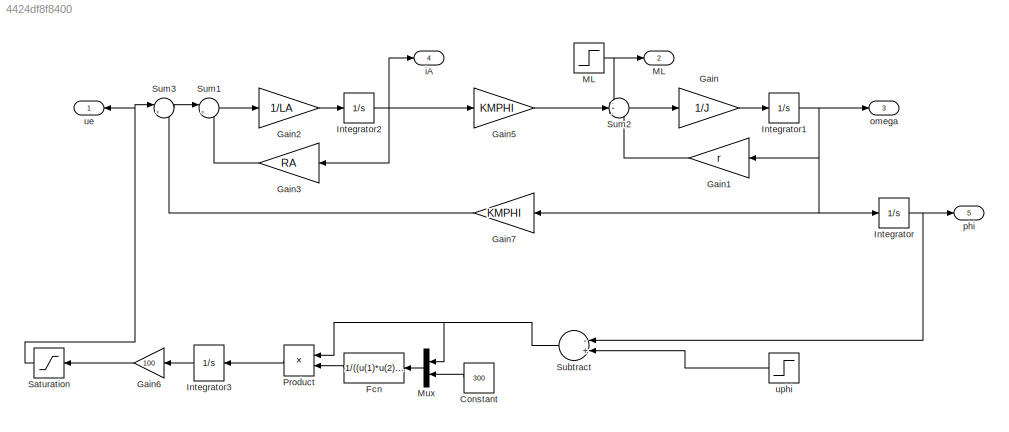
MODEL slx_4424df8f8400
KIND model
BLOCK [Constant] Constant
  Value = 300
BLOCK [Fcn] Fcn
  Expr = 1/((u(1)*u(2))^2+1)
BLOCK [Gain] Gain
  Gain = 1/J
  OutDataTypeStr = Inherit: Inherit via internal rule
  ParamDataTypeStr = Inherit: Inherit via internal rule
  SaturateOnIntegerOverflow = off
BLOCK [Gain] Gain1
  Gain = r
  OutDataTypeStr = Inherit: Inherit via internal rule
  ParamDataTypeStr = Inherit: Inherit via internal rule
  SaturateOnIntegerOverflow = off
BLOCK [Gain] Gain2
  Gain = 1/LA
  OutDataTypeStr = Inherit: Inherit via internal rule
  ParamDataTypeStr = Inherit: Inherit via internal rule
  SaturateOnIntegerOverflow = off
BLOCK [Gain] Gain3
  Gain = RA
  OutDataTypeStr = Inherit: Inherit via internal rule
  ParamDataTypeStr = Inherit: Inherit via internal rule
  SaturateOnIntegerOverflow = off
BLOCK [Gain] Gain5
  Gain = KMPHI
  OutDataTypeStr = Inherit: Inherit via internal rule
  ParamDataTypeStr = Inherit: Inherit via internal rule
  SaturateOnIntegerOverflow = off
BLOCK [Gain] Gain6
  Gain = 100
  OutDataTypeStr = Inherit: Inherit via internal rule
  ParamDataTypeStr = Inherit: Inherit via internal rule
  SaturateOnIntegerOverflow = off
BLOCK [Gain] Gain7
  Gain = KMPHI
  OutDataTypeStr = Inherit: Inherit via internal rule
  ParamDataTypeStr = Inherit: Inherit via internal rule
  SaturateOnIntegerOverflow = off
BLOCK [Integrator] Integrator
  Ports = [1, 1]
BLOCK [Integrator] Integrator1
  Ports = [1, 1]
BLOCK [Integrator] Integrator2
  Ports = [1, 1]
BLOCK [Integrator] Integrator3
  LowerSaturationLimit = -24
  Ports = [1, 1]
  UpperSaturationLimit = 24
BLOCK [Step] ML
  After = Mspiegel
  SampleTime = 0
  Time = 0
BLOCK [Outport] ML 
  IconDisplay = Port number
  Port = 2
BLOCK [Mux] Mux
  DisplayOption = bar
  Inputs = 2
  Ports = [2, 1]
BLOCK [Product] Product
  OutDataTypeStr = Inherit: Inherit via internal rule
  Ports = [2, 1]
  SaturateOnIntegerOverflow = off
BLOCK [Saturate] Saturation
  InputPortMap = u0
  Ports = [1, 1]
BLOCK [Sum] Subtract
  InputSameDT = off
  Inputs = -+
  OutDataTypeStr = Inherit: Inherit via internal rule
  Ports = [2, 1]
  SaturateOnIntegerOverflow = off
BLOCK [Sum] Sum1
  IconShape = round
  InputSameDT = off
  Inputs = |+-
  OutDataTypeStr = Inherit: Inherit via internal rule
  Ports = [2, 1]
  SaturateOnIntegerOverflow = off
BLOCK [Sum] Sum2
  IconShape = round
  InputSameDT = off
  Inputs = -+-
  OutDataTypeStr = Inherit: Inherit via internal rule
  Ports = [3, 1]
  SaturateOnIntegerOverflow = off
BLOCK [Sum] Sum3
  IconShape = round
  InputSameDT = off
  Inputs = |+-
  OutDataTypeStr = Inherit: Inherit via internal rule
  Ports = [2, 1]
  SaturateOnIntegerOverflow = off
BLOCK [Outport] iA
  IconDisplay = Port number
  Port = 4
BLOCK [Outport] omega
  IconDisplay = Port number
  Port = 3
BLOCK [Outport] phi
  IconDisplay = Port number
  Port = 5
BLOCK [Outport] ue 
  IconDisplay = Port number
BLOCK [Step] uphi
  After = phi
  Before = phi
  SampleTime = 0
  Time = 100
LINE Constant:1 -> Mux:2
LINE Fcn:1 -> Product:2
LINE Gain1:1 -> Sum2:3
LINE Gain2:1 -> Integrator2:1
LINE Gain3:1 -> Sum1:2
LINE Gain5:1 -> Sum2:2
LINE Gain6:1 -> Saturation:1
LINE Gain7:1 -> Sum3:2
LINE Gain:1 -> Integrator1:1
NET Integrator1:1 -> Gain1:1, Gain7:1, Integrator:1, omega:1
NET Integrator2:1 -> Gain3:1, Gain5:1, iA:1
LINE Integrator3:1 -> Gain6:1
NET Integrator:1 -> Subtract:1, phi:1
NET ML:1 -> ML :1, Sum2:1
LINE Mux:1 -> Fcn:1
LINE Product:1 -> Integrator3:1
NET Saturation:1 -> Sum3:1, ue :1
NET Subtract:1 -> Mux:1, Product:1
LINE Sum1:1 -> Gain2:1
LINE Sum2:1 -> Gain:1
LINE Sum3:1 -> Sum1:1
LINE uphi:1 -> Subtract:2
note: NET lines group one-source signal fan-out (src -> all destinations, sorted); 1:1 wires keep LINE
